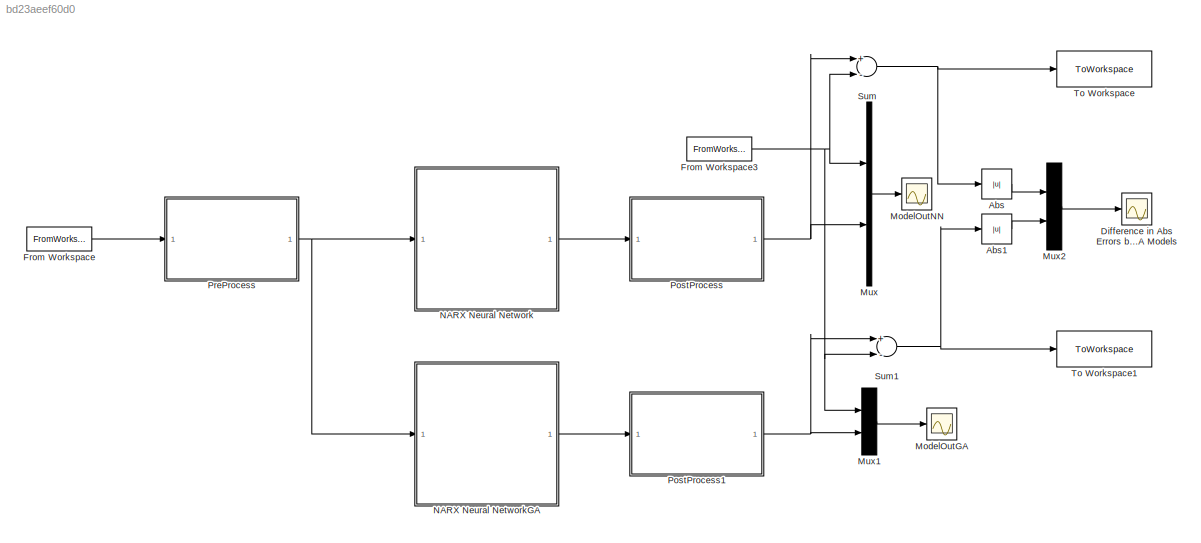
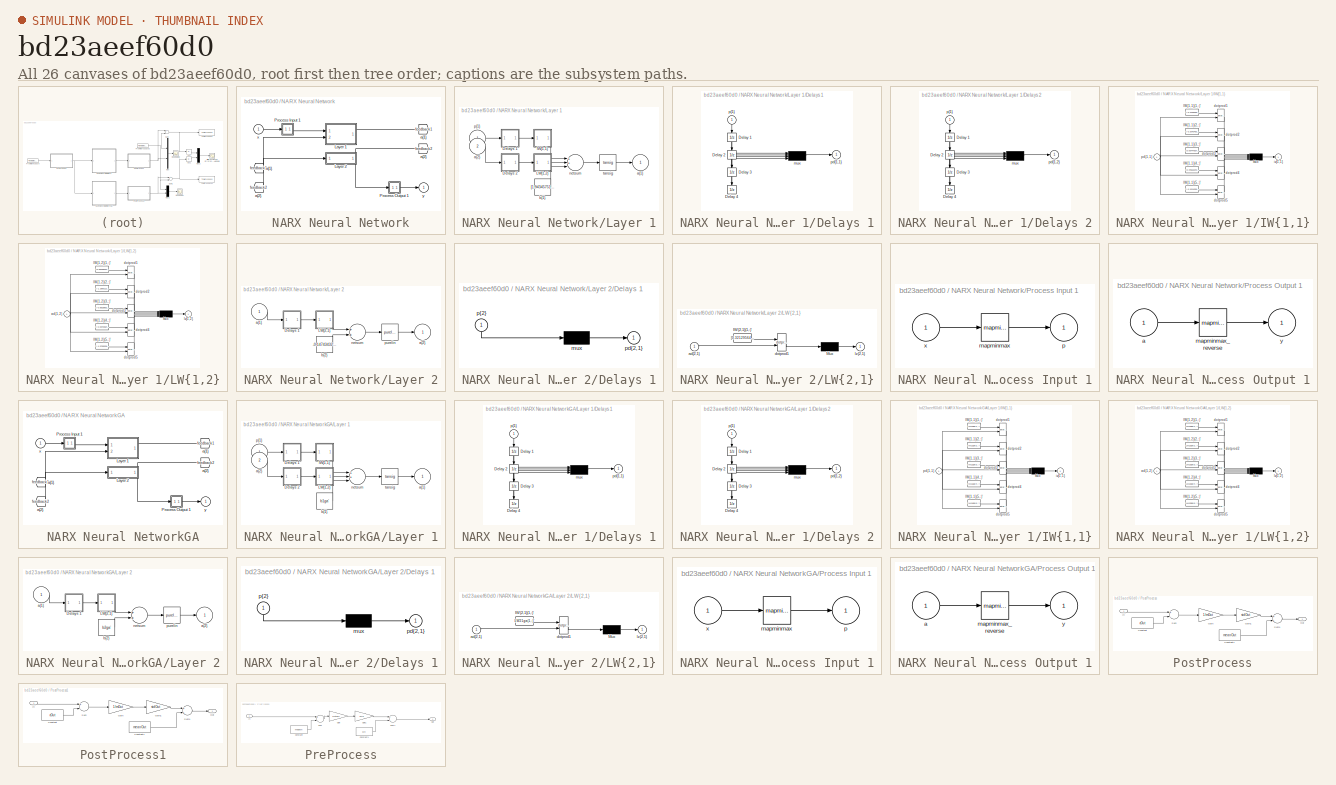
[diagram: thumbnail index - all 26 canvases of the model, root first then tree order]
MODEL slx_bd23aeef60d0
KIND model
CONFIG AbsTol = auto
CONFIG FixedStep = auto
CONFIG MaxStep = auto
CONFIG MinStep = auto
CONFIG RelTol = 1e-3
CONFIG SampleTimeConstraint = Unconstrained
CONFIG Solver = VariableStepAuto
CONFIG SolverMode = Auto
CONFIG SolverName = VariableStepAuto
CONFIG StartTime = 0.0
CONFIG StopTime = 19
BLOCK [Abs] Abs
  SaturateOnIntegerOverflow = off
BLOCK [Abs] Abs1
  SaturateOnIntegerOverflow = off
BLOCK [Scope] Difference in Abs Errors between NN and GA Models
  Ports = [1]
  ScopeSpecificationString = Simulink.scopes.TimeScopeBlockCfg('CurrentConfiguration', extmgr.ConfigurationSet(extmgr.Configuration('Core','General UI',true),extmgr.Configuration('Core','Source UI',true),extmgr.Configuration('Sources','WiredSimulink',true,'DataLoggingVariableName','ScopeData1'),extmgr.Configuration('Visuals','Time Domain',true,'SerializedDisplays',{struct('MinYLimReal','-12.60659','MaxYLimReal','6.87972','YLa...<+1464ch>
BLOCK [FromWorkspace] From Workspace
  VariableName = zIn
  ZeroCross = on
BLOCK [FromWorkspace] From Workspace3
  VariableName = zOut
  ZeroCross = on
BLOCK [Scope] ModelOutGA
  Ports = [1]
  ScopeSpecificationString = Simulink.scopes.TimeScopeBlockCfg('CurrentConfiguration', extmgr.ConfigurationSet(extmgr.Configuration('Core','General UI',true),extmgr.Configuration('Core','Source UI',true),extmgr.Configuration('Sources','WiredSimulink',true,'DataLoggingVariableName','ScopeData1'),extmgr.Configuration('Visuals','Time Domain',true,'SerializedDisplays',{struct('MinYLimReal','-2.37125','MaxYLimReal','41.64125','YLa...<+1445ch>
BLOCK [Scope] ModelOutNN
  Ports = [1]
  ScopeSpecificationString = Simulink.scopes.TimeScopeBlockCfg('CurrentConfiguration', extmgr.ConfigurationSet(extmgr.Configuration('Core','General UI',true),extmgr.Configuration('Core','Source UI',true),extmgr.Configuration('Sources','WiredSimulink',true),extmgr.Configuration('Visuals','Time Domain',true,'SerializedDisplays',{struct('MinYLimReal','-2.81939','MaxYLimReal','41.69104','YLabelReal','','MinYLimMag','0.00000','Max...<+1405ch>
BLOCK [Mux] Mux
  DisplayOption = bar
  Inputs = 2
  Ports = [2, 1]
BLOCK [Mux] Mux1
  DisplayOption = bar
  Inputs = 2
  Ports = [2, 1]
BLOCK [Mux] Mux2
  DisplayOption = bar
  Inputs = 2
  Ports = [2, 1]
BLOCK [SubSystem] NARX Neural Network
  Ports = [1, 1]
  RequestExecContextInheritance = off
  Variant = off
BLOCK [From] NARX Neural Network/ a{1} 
  GotoTag = feedback1
BLOCK [From] NARX Neural Network/ a{2} 
  GotoTag = feedback2
BLOCK [SubSystem] NARX Neural Network/Layer 1
  Ports = [2, 1]
  RequestExecContextInheritance = off
  Variant = off
BLOCK [SubSystem] NARX Neural Network/Layer 1/Delays 1
  Ports = [1, 1]
  RequestExecContextInheritance = off
  Variant = off
BLOCK [UnitDelay] NARX Neural Network/Layer 1/Delays 1/Delay 1
  InitialCondition = pi_input_1_delayed_1
  SampleTime = 0.001
BLOCK [UnitDelay] NARX Neural Network/Layer 1/Delays 1/Delay 2
  InitialCondition = pi_input_1_delayed_2
  SampleTime = 0.001
BLOCK [UnitDelay] NARX Neural Network/Layer 1/Delays 1/Delay 3
  InitialCondition = pi_input_1_delayed_3
  SampleTime = 0.001
BLOCK [UnitDelay] NARX Neural Network/Layer 1/Delays 1/Delay 4
  InitialCondition = pi_input_1_delayed_4
  SampleTime = 0.001
BLOCK [Mux] NARX Neural Network/Layer 1/Delays 1/mux
  Ports = [4, 1]
BLOCK [Outport] NARX Neural Network/Layer 1/Delays 1/pd{1,1}
  IconDisplay = Port number
BLOCK [Inport] NARX Neural Network/Layer 1/Delays 1/p{1}
  IconDisplay = Port number
  PortDimensions = 1
  SampleTime = 0.001
BLOCK [SubSystem] NARX Neural Network/Layer 1/Delays 2
  Ports = [1, 1]
  RequestExecContextInheritance = off
  Variant = off
BLOCK [UnitDelay] NARX Neural Network/Layer 1/Delays 2/Delay 1
  InitialCondition = ai_layer_2_delayed_1
  SampleTime = 0.001
BLOCK [UnitDelay] NARX Neural Network/Layer 1/Delays 2/Delay 2
  InitialCondition = ai_layer_2_delayed_2
  SampleTime = 0.001
BLOCK [UnitDelay] NARX Neural Network/Layer 1/Delays 2/Delay 3
  InitialCondition = ai_layer_2_delayed_3
  SampleTime = 0.001
BLOCK [UnitDelay] NARX Neural Network/Layer 1/Delays 2/Delay 4
  InitialCondition = ai_layer_2_delayed_4
  SampleTime = 0.001
BLOCK [Mux] NARX Neural Network/Layer 1/Delays 2/mux
  Ports = [4, 1]
BLOCK [Outport] NARX Neural Network/Layer 1/Delays 2/pd{1,2}
  IconDisplay = Port number
BLOCK [Inport] NARX Neural Network/Layer 1/Delays 2/p{1}
  IconDisplay = Port number
  PortDimensions = 1
  SampleTime = 0.001
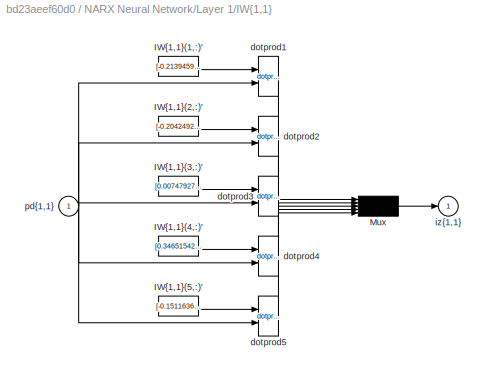
BLOCK [SubSystem] NARX Neural Network/Layer 1/IW{1,1}
  Ports = [1, 1]
  RequestExecContextInheritance = off
  Variant = off
BLOCK [Constant] NARX Neural Network/Layer 1/IW{1,1}/IW{1,1}(1,:)'
  Value = [-0.21394592193261483;0.27340388256736614;0.15605109366863168;-0.20573258549225115]
BLOCK [Constant] NARX Neural Network/Layer 1/IW{1,1}/IW{1,1}(2,:)'
  Value = [-0.20424927994111769;0.29307007345864194;0.57652523715217718;-0.66514344759104971]
BLOCK [Constant] NARX Neural Network/Layer 1/IW{1,1}/IW{1,1}(3,:)'
  Value = [0.0074792775410704665;-0.0123361567030246;0.045655823248145468;-0.038196486853773699]
BLOCK [Constant] NARX Neural Network/Layer 1/IW{1,1}/IW{1,1}(4,:)'
  Value = [0.34651542762470011;-0.29698234840308579;-0.55506471255227097;0.42689792275396249]
BLOCK [Constant] NARX Neural Network/Layer 1/IW{1,1}/IW{1,1}(5,:)'
  Value = [-0.1511636583266473;0.11704615743356805;-0.22102464488796872;0.24585817351529715]
BLOCK [Mux] NARX Neural Network/Layer 1/IW{1,1}/Mux
  Inputs = 5
  Ports = [5, 1]
BLOCK [Reference] NARX Neural Network/Layer 1/IW{1,1}/dotprod1  REF=neural/Weight Functions/dotprod
  Ports = [2, 1]
  SourceBlock = neural/Weight Functions/dotprod
  SourceType = DOTPROD
BLOCK [Reference] NARX Neural Network/Layer 1/IW{1,1}/dotprod2  REF=neural/Weight Functions/dotprod
  Ports = [2, 1]
  SourceBlock = neural/Weight Functions/dotprod
  SourceType = DOTPROD
BLOCK [Reference] NARX Neural Network/Layer 1/IW{1,1}/dotprod3  REF=neural/Weight Functions/dotprod
  Ports = [2, 1]
  SourceBlock = neural/Weight Functions/dotprod
  SourceType = DOTPROD
BLOCK [Reference] NARX Neural Network/Layer 1/IW{1,1}/dotprod4  REF=neural/Weight Functions/dotprod
  Ports = [2, 1]
  SourceBlock = neural/Weight Functions/dotprod
  SourceType = DOTPROD
BLOCK [Reference] NARX Neural Network/Layer 1/IW{1,1}/dotprod5  REF=neural/Weight Functions/dotprod
  Ports = [2, 1]
  SourceBlock = neural/Weight Functions/dotprod
  SourceType = DOTPROD
BLOCK [Outport] NARX Neural Network/Layer 1/IW{1,1}/iz{1,1}
  IconDisplay = Port number
BLOCK [Inport] NARX Neural Network/Layer 1/IW{1,1}/pd{1,1}
  IconDisplay = Port number
  PortDimensions = 4
  SampleTime = 0.001
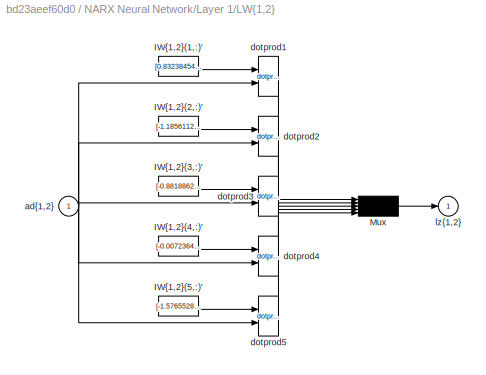
BLOCK [SubSystem] NARX Neural Network/Layer 1/LW{1,2}
  Ports = [1, 1]
  RequestExecContextInheritance = off
  Variant = off
BLOCK [Constant] NARX Neural Network/Layer 1/LW{1,2}/IW{1,2}(1,:)'
  Value = [0.83238454681226848;-0.037448841420938413;0.047032227985971439;0.48141574394877518]
BLOCK [Constant] NARX Neural Network/Layer 1/LW{1,2}/IW{1,2}(2,:)'
  Value = [-1.1856112524529332;-0.27002026011054792;-0.33121581336721939;-0.83434423372397626]
BLOCK [Constant] NARX Neural Network/Layer 1/LW{1,2}/IW{1,2}(3,:)'
  Value = [-0.88188624971345997;-0.055936392822702428;-0.026637181143175519;0.24441715125290531]
BLOCK [Constant] NARX Neural Network/Layer 1/LW{1,2}/IW{1,2}(4,:)'
  Value = [-0.0072364442992937737;-0.19605239676741004;-1.1747343128807008;-0.99669915592995517]
BLOCK [Constant] NARX Neural Network/Layer 1/LW{1,2}/IW{1,2}(5,:)'
  Value = [-1.5765528979621626;-0.19789138785028351;-0.17566180863724826;0.56285898423633152]
BLOCK [Mux] NARX Neural Network/Layer 1/LW{1,2}/Mux
  Inputs = 5
  Ports = [5, 1]
BLOCK [Inport] NARX Neural Network/Layer 1/LW{1,2}/ad{1,2}
  IconDisplay = Port number
  PortDimensions = 4
  SampleTime = 0.001
BLOCK [Reference] NARX Neural Network/Layer 1/LW{1,2}/dotprod1  REF=neural/Weight Functions/dotprod
  Ports = [2, 1]
  SourceBlock = neural/Weight Functions/dotprod
  SourceType = DOTPROD
BLOCK [Reference] NARX Neural Network/Layer 1/LW{1,2}/dotprod2  REF=neural/Weight Functions/dotprod
  Ports = [2, 1]
  SourceBlock = neural/Weight Functions/dotprod
  SourceType = DOTPROD
BLOCK [Reference] NARX Neural Network/Layer 1/LW{1,2}/dotprod3  REF=neural/Weight Functions/dotprod
  Ports = [2, 1]
  SourceBlock = neural/Weight Functions/dotprod
  SourceType = DOTPROD
BLOCK [Reference] NARX Neural Network/Layer 1/LW{1,2}/dotprod4  REF=neural/Weight Functions/dotprod
  Ports = [2, 1]
  SourceBlock = neural/Weight Functions/dotprod
  SourceType = DOTPROD
BLOCK [Reference] NARX Neural Network/Layer 1/LW{1,2}/dotprod5  REF=neural/Weight Functions/dotprod
  Ports = [2, 1]
  SourceBlock = neural/Weight Functions/dotprod
  SourceType = DOTPROD
BLOCK [Outport] NARX Neural Network/Layer 1/LW{1,2}/lz{1,2}
  IconDisplay = Port number
BLOCK [Outport] NARX Neural Network/Layer 1/a{1}
  IconDisplay = Port number
  InitialOutput = [0;0;0;0;0]
BLOCK [Inport] NARX Neural Network/Layer 1/a{2} 
  IconDisplay = Port number
  Port = 2
  PortDimensions = 1
  SampleTime = 0.001
BLOCK [Constant] NARX Neural Network/Layer 1/b{1}
  Value = [1.943457516117048;1.4384556067515928;-0.26241997125974481;0.35965151055632366;1.6671540210116291]
BLOCK [Sum] NARX Neural Network/Layer 1/netsum
  Inputs = 3
  Ports = [3, 1]
BLOCK [Inport] NARX Neural Network/Layer 1/p{1}
  IconDisplay = Port number
  PortDimensions = 1
  SampleTime = 0.001
BLOCK [Reference] NARX Neural Network/Layer 1/tansig  REF=neural/Transfer Functions/tansig
  Ports = [1, 1]
  SourceBlock = neural/Transfer Functions/tansig
  SourceType = TANSIG
BLOCK [SubSystem] NARX Neural Network/Layer 2
  Ports = [1, 1]
  RequestExecContextInheritance = off
  Variant = off
BLOCK [SubSystem] NARX Neural Network/Layer 2/Delays 1
  Ports = [1, 1]
  RequestExecContextInheritance = off
  Variant = off
BLOCK [Mux] NARX Neural Network/Layer 2/Delays 1/mux
  Inputs = 1
  Ports = [1, 1]
BLOCK [Outport] NARX Neural Network/Layer 2/Delays 1/pd{2,1}
  IconDisplay = Port number
BLOCK [Inport] NARX Neural Network/Layer 2/Delays 1/p{2}
  IconDisplay = Port number
  PortDimensions = 5
  SampleTime = 0.001
BLOCK [SubSystem] NARX Neural Network/Layer 2/LW{2,1}
  Ports = [1, 1]
  RequestExecContextInheritance = off
  Variant = off
BLOCK [Constant] NARX Neural Network/Layer 2/LW{2,1}/IW{2,1}(1,:)'
  Value = [0.32129564989516812;-0.027689574041571997;-1.1897399838020446;-0.03308149829136469;-0.46157462385903975]
BLOCK [Mux] NARX Neural Network/Layer 2/LW{2,1}/Mux
  Inputs = 1
  Ports = [1, 1]
BLOCK [Inport] NARX Neural Network/Layer 2/LW{2,1}/ad{2,1}
  IconDisplay = Port number
  PortDimensions = 5
  SampleTime = 0.001
BLOCK [Reference] NARX Neural Network/Layer 2/LW{2,1}/dotprod1  REF=neural/Weight Functions/dotprod
  Ports = [2, 1]
  SourceBlock = neural/Weight Functions/dotprod
  SourceType = DOTPROD
BLOCK [Outport] NARX Neural Network/Layer 2/LW{2,1}/lz{2,1}
  IconDisplay = Port number
BLOCK [Inport] NARX Neural Network/Layer 2/a{1} 
  IconDisplay = Port number
  PortDimensions = 5
  SampleTime = 0.001
BLOCK [Outport] NARX Neural Network/Layer 2/a{2}
  IconDisplay = Port number
  InitialOutput = 0
BLOCK [Constant] NARX Neural Network/Layer 2/b{2}
  Value = -0.14743432023291708
BLOCK [Sum] NARX Neural Network/Layer 2/netsum
  Inputs = 2
  Ports = [2, 1]
BLOCK [Reference] NARX Neural Network/Layer 2/purelin  REF=neural/Transfer Functions/purelin
  Ports = [1, 1]
  SourceBlock = neural/Transfer Functions/purelin
  SourceType = PURELIN
BLOCK [SubSystem] NARX Neural Network/Process Input 1
  Ports = [1, 1]
  RequestExecContextInheritance = off
  Variant = off
BLOCK [Reference] NARX Neural Network/Process Input 1/mapminmax  REF=neural/Processing Functions/mapminmax
  Ports = [1, 1]
  SourceBlock = neural/Processing Functions/mapminmax
  SourceType = MAPMINMAX Preprocess
BLOCK [Outport] NARX Neural Network/Process Input 1/p
  IconDisplay = Port number
  PortDimensions = 1
  SampleTime = 0.001
BLOCK [Inport] NARX Neural Network/Process Input 1/x
  IconDisplay = Port number
  PortDimensions = 1
  SampleTime = 0.001
BLOCK [SubSystem] NARX Neural Network/Process Output 1
  Ports = [1, 1]
  RequestExecContextInheritance = off
  Variant = off
BLOCK [Inport] NARX Neural Network/Process Output 1/a
  IconDisplay = Port number
  PortDimensions = 1
  SampleTime = 0.001
BLOCK [Reference] NARX Neural Network/Process Output 1/mapminmax_reverse  REF=neural/Processing Functions/mapminmax_reverse
  Ports = [1, 1]
  SourceBlock = neural/Processing Functions/mapminmax_reverse
  SourceType = MAPMINMAX Reverse Process
BLOCK [Outport] NARX Neural Network/Process Output 1/y
  IconDisplay = Port number
  PortDimensions = 1
  SampleTime = 0.001
BLOCK [Goto] NARX Neural Network/a{1}
  GotoTag = feedback1
BLOCK [Goto] NARX Neural Network/a{2}
  GotoTag = feedback2
BLOCK [Inport] NARX Neural Network/x
  IconDisplay = Port number
  PortDimensions = 1
  SampleTime = 0.001
BLOCK [Outport] NARX Neural Network/y
  IconDisplay = Port number
  InitialOutput = 0
BLOCK [SubSystem] NARX Neural NetworkGA
  Ports = [1, 1]
  RequestExecContextInheritance = off
  Variant = off
BLOCK [From] NARX Neural NetworkGA/ a{1} 
  GotoTag = feedback1
BLOCK [From] NARX Neural NetworkGA/ a{2} 
  GotoTag = feedback2
BLOCK [SubSystem] NARX Neural NetworkGA/Layer 1
  Ports = [2, 1]
  RequestExecContextInheritance = off
  Variant = off
BLOCK [SubSystem] NARX Neural NetworkGA/Layer 1/Delays 1
  Ports = [1, 1]
  RequestExecContextInheritance = off
  Variant = off
BLOCK [UnitDelay] NARX Neural NetworkGA/Layer 1/Delays 1/Delay 1
  InitialCondition = pi_input_1_delayed_1
  SampleTime = 0.001
BLOCK [UnitDelay] NARX Neural NetworkGA/Layer 1/Delays 1/Delay 2
  InitialCondition = pi_input_1_delayed_2
  SampleTime = 0.001
BLOCK [UnitDelay] NARX Neural NetworkGA/Layer 1/Delays 1/Delay 3
  InitialCondition = pi_input_1_delayed_3
  SampleTime = 0.001
BLOCK [UnitDelay] NARX Neural NetworkGA/Layer 1/Delays 1/Delay 4
  InitialCondition = pi_input_1_delayed_4
  SampleTime = 0.001
BLOCK [Mux] NARX Neural NetworkGA/Layer 1/Delays 1/mux
  Ports = [4, 1]
BLOCK [Outport] NARX Neural NetworkGA/Layer 1/Delays 1/pd{1,1}
  IconDisplay = Port number
BLOCK [Inport] NARX Neural NetworkGA/Layer 1/Delays 1/p{1}
  IconDisplay = Port number
  PortDimensions = 1
  SampleTime = 0.001
BLOCK [SubSystem] NARX Neural NetworkGA/Layer 1/Delays 2
  Ports = [1, 1]
  RequestExecContextInheritance = off
  Variant = off
BLOCK [UnitDelay] NARX Neural NetworkGA/Layer 1/Delays 2/Delay 1
  InitialCondition = ai_layer_2_delayed_1
  SampleTime = 0.001
BLOCK [UnitDelay] NARX Neural NetworkGA/Layer 1/Delays 2/Delay 2
  InitialCondition = ai_layer_2_delayed_2
  SampleTime = 0.001
BLOCK [UnitDelay] NARX Neural NetworkGA/Layer 1/Delays 2/Delay 3
  InitialCondition = ai_layer_2_delayed_3
  SampleTime = 0.001
BLOCK [UnitDelay] NARX Neural NetworkGA/Layer 1/Delays 2/Delay 4
  InitialCondition = ai_layer_2_delayed_4
  SampleTime = 0.001
BLOCK [Mux] NARX Neural NetworkGA/Layer 1/Delays 2/mux
  Ports = [4, 1]
BLOCK [Outport] NARX Neural NetworkGA/Layer 1/Delays 2/pd{1,2}
  IconDisplay = Port number
BLOCK [Inport] NARX Neural NetworkGA/Layer 1/Delays 2/p{1}
  IconDisplay = Port number
  PortDimensions = 1
  SampleTime = 0.001
BLOCK [SubSystem] NARX Neural NetworkGA/Layer 1/IW{1,1}
  Ports = [1, 1]
  RequestExecContextInheritance = off
  Variant = off
BLOCK [Constant] NARX Neural NetworkGA/Layer 1/IW{1,1}/IW{1,1}(1,:)'
  Value = IW11ga(1,:)'
BLOCK [Constant] NARX Neural NetworkGA/Layer 1/IW{1,1}/IW{1,1}(2,:)'
  Value = IW11ga(2,:)'
BLOCK [Constant] NARX Neural NetworkGA/Layer 1/IW{1,1}/IW{1,1}(3,:)'
  Value = IW11ga(3,:)'
BLOCK [Constant] NARX Neural NetworkGA/Layer 1/IW{1,1}/IW{1,1}(4,:)'
  Value = IW11ga(4,:)'
BLOCK [Constant] NARX Neural NetworkGA/Layer 1/IW{1,1}/IW{1,1}(5,:)'
  Value = IW11ga(5,:)'
BLOCK [Mux] NARX Neural NetworkGA/Layer 1/IW{1,1}/Mux
  Inputs = 5
  Ports = [5, 1]
BLOCK [Reference] NARX Neural NetworkGA/Layer 1/IW{1,1}/dotprod1  REF=neural/Weight Functions/dotprod
  Ports = [2, 1]
  SourceBlock = neural/Weight Functions/dotprod
  SourceType = DOTPROD
BLOCK [Reference] NARX Neural NetworkGA/Layer 1/IW{1,1}/dotprod2  REF=neural/Weight Functions/dotprod
  Ports = [2, 1]
  SourceBlock = neural/Weight Functions/dotprod
  SourceType = DOTPROD
BLOCK [Reference] NARX Neural NetworkGA/Layer 1/IW{1,1}/dotprod3  REF=neural/Weight Functions/dotprod
  Ports = [2, 1]
  SourceBlock = neural/Weight Functions/dotprod
  SourceType = DOTPROD
BLOCK [Reference] NARX Neural NetworkGA/Layer 1/IW{1,1}/dotprod4  REF=neural/Weight Functions/dotprod
  Ports = [2, 1]
  SourceBlock = neural/Weight Functions/dotprod
  SourceType = DOTPROD
BLOCK [Reference] NARX Neural NetworkGA/Layer 1/IW{1,1}/dotprod5  REF=neural/Weight Functions/dotprod
  Ports = [2, 1]
  SourceBlock = neural/Weight Functions/dotprod
  SourceType = DOTPROD
BLOCK [Outport] NARX Neural NetworkGA/Layer 1/IW{1,1}/iz{1,1}
  IconDisplay = Port number
BLOCK [Inport] NARX Neural NetworkGA/Layer 1/IW{1,1}/pd{1,1}
  IconDisplay = Port number
  PortDimensions = 4
  SampleTime = 0.001
BLOCK [SubSystem] NARX Neural NetworkGA/Layer 1/LW{1,2}
  Ports = [1, 1]
  RequestExecContextInheritance = off
  Variant = off
BLOCK [Constant] NARX Neural NetworkGA/Layer 1/LW{1,2}/IW{1,2}(1,:)'
  Value = LW12ga(1,:)'
BLOCK [Constant] NARX Neural NetworkGA/Layer 1/LW{1,2}/IW{1,2}(2,:)'
  Value = LW12ga(2,:)'
BLOCK [Constant] NARX Neural NetworkGA/Layer 1/LW{1,2}/IW{1,2}(3,:)'
  Value = LW12ga(3,:)'
BLOCK [Constant] NARX Neural NetworkGA/Layer 1/LW{1,2}/IW{1,2}(4,:)'
  Value = LW12ga(4,:)'
BLOCK [Constant] NARX Neural NetworkGA/Layer 1/LW{1,2}/IW{1,2}(5,:)'
  Value = LW12ga(5,:)'
BLOCK [Mux] NARX Neural NetworkGA/Layer 1/LW{1,2}/Mux
  Inputs = 5
  Ports = [5, 1]
BLOCK [Inport] NARX Neural NetworkGA/Layer 1/LW{1,2}/ad{1,2}
  IconDisplay = Port number
  PortDimensions = 4
  SampleTime = 0.001
BLOCK [Reference] NARX Neural NetworkGA/Layer 1/LW{1,2}/dotprod1  REF=neural/Weight Functions/dotprod
  Ports = [2, 1]
  SourceBlock = neural/Weight Functions/dotprod
  SourceType = DOTPROD
BLOCK [Reference] NARX Neural NetworkGA/Layer 1/LW{1,2}/dotprod2  REF=neural/Weight Functions/dotprod
  Ports = [2, 1]
  SourceBlock = neural/Weight Functions/dotprod
  SourceType = DOTPROD
BLOCK [Reference] NARX Neural NetworkGA/Layer 1/LW{1,2}/dotprod3  REF=neural/Weight Functions/dotprod
  Ports = [2, 1]
  SourceBlock = neural/Weight Functions/dotprod
  SourceType = DOTPROD
BLOCK [Reference] NARX Neural NetworkGA/Layer 1/LW{1,2}/dotprod4  REF=neural/Weight Functions/dotprod
  Ports = [2, 1]
  SourceBlock = neural/Weight Functions/dotprod
  SourceType = DOTPROD
BLOCK [Reference] NARX Neural NetworkGA/Layer 1/LW{1,2}/dotprod5  REF=neural/Weight Functions/dotprod
  Ports = [2, 1]
  SourceBlock = neural/Weight Functions/dotprod
  SourceType = DOTPROD
BLOCK [Outport] NARX Neural NetworkGA/Layer 1/LW{1,2}/lz{1,2}
  IconDisplay = Port number
BLOCK [Outport] NARX Neural NetworkGA/Layer 1/a{1}
  IconDisplay = Port number
  InitialOutput = [0;0;0;0;0]
BLOCK [Inport] NARX Neural NetworkGA/Layer 1/a{2} 
  IconDisplay = Port number
  Port = 2
  PortDimensions = 1
  SampleTime = 0.001
BLOCK [Constant] NARX Neural NetworkGA/Layer 1/b{1}
  Value = b1ga'
BLOCK [Sum] NARX Neural NetworkGA/Layer 1/netsum
  Inputs = 3
  Ports = [3, 1]
BLOCK [Inport] NARX Neural NetworkGA/Layer 1/p{1}
  IconDisplay = Port number
  PortDimensions = 1
  SampleTime = 0.001
BLOCK [Reference] NARX Neural NetworkGA/Layer 1/tansig  REF=neural/Transfer Functions/tansig
  Ports = [1, 1]
  SourceBlock = neural/Transfer Functions/tansig
  SourceType = TANSIG
BLOCK [SubSystem] NARX Neural NetworkGA/Layer 2
  Ports = [1, 1]
  RequestExecContextInheritance = off
  Variant = off
BLOCK [SubSystem] NARX Neural NetworkGA/Layer 2/Delays 1
  Ports = [1, 1]
  RequestExecContextInheritance = off
  Variant = off
BLOCK [Mux] NARX Neural NetworkGA/Layer 2/Delays 1/mux
  Inputs = 1
  Ports = [1, 1]
BLOCK [Outport] NARX Neural NetworkGA/Layer 2/Delays 1/pd{2,1}
  IconDisplay = Port number
BLOCK [Inport] NARX Neural NetworkGA/Layer 2/Delays 1/p{2}
  IconDisplay = Port number
  PortDimensions = 5
  SampleTime = 0.001
BLOCK [SubSystem] NARX Neural NetworkGA/Layer 2/LW{2,1}
  Ports = [1, 1]
  RequestExecContextInheritance = off
  Variant = off
BLOCK [Constant] NARX Neural NetworkGA/Layer 2/LW{2,1}/IW{2,1}(1,:)'
  Value = LW21ga(1,:)'
BLOCK [Mux] NARX Neural NetworkGA/Layer 2/LW{2,1}/Mux
  Inputs = 1
  Ports = [1, 1]
BLOCK [Inport] NARX Neural NetworkGA/Layer 2/LW{2,1}/ad{2,1}
  IconDisplay = Port number
  PortDimensions = 5
  SampleTime = 0.001
BLOCK [Reference] NARX Neural NetworkGA/Layer 2/LW{2,1}/dotprod1  REF=neural/Weight Functions/dotprod
  Ports = [2, 1]
  SourceBlock = neural/Weight Functions/dotprod
  SourceType = DOTPROD
BLOCK [Outport] NARX Neural NetworkGA/Layer 2/LW{2,1}/lz{2,1}
  IconDisplay = Port number
BLOCK [Inport] NARX Neural NetworkGA/Layer 2/a{1} 
  IconDisplay = Port number
  PortDimensions = 5
  SampleTime = 0.001
BLOCK [Outport] NARX Neural NetworkGA/Layer 2/a{2}
  IconDisplay = Port number
  InitialOutput = 0
BLOCK [Constant] NARX Neural NetworkGA/Layer 2/b{2}
  Value = b2ga'
BLOCK [Sum] NARX Neural NetworkGA/Layer 2/netsum
  Inputs = 2
  Ports = [2, 1]
BLOCK [Reference] NARX Neural NetworkGA/Layer 2/purelin  REF=neural/Transfer Functions/purelin
  Ports = [1, 1]
  SourceBlock = neural/Transfer Functions/purelin
  SourceType = PURELIN
BLOCK [SubSystem] NARX Neural NetworkGA/Process Input 1
  Ports = [1, 1]
  RequestExecContextInheritance = off
  Variant = off
BLOCK [Reference] NARX Neural NetworkGA/Process Input 1/mapminmax  REF=neural/Processing Functions/mapminmax
  Ports = [1, 1]
  SourceBlock = neural/Processing Functions/mapminmax
  SourceType = MAPMINMAX Preprocess
BLOCK [Outport] NARX Neural NetworkGA/Process Input 1/p
  IconDisplay = Port number
  PortDimensions = 1
  SampleTime = 0.001
BLOCK [Inport] NARX Neural NetworkGA/Process Input 1/x
  IconDisplay = Port number
  PortDimensions = 1
  SampleTime = 0.001
BLOCK [SubSystem] NARX Neural NetworkGA/Process Output 1
  Ports = [1, 1]
  RequestExecContextInheritance = off
  Variant = off
BLOCK [Inport] NARX Neural NetworkGA/Process Output 1/a
  IconDisplay = Port number
  PortDimensions = 1
  SampleTime = 0.001
BLOCK [Reference] NARX Neural NetworkGA/Process Output 1/mapminmax_reverse  REF=neural/Processing Functions/mapminmax_reverse
  Ports = [1, 1]
  SourceBlock = neural/Processing Functions/mapminmax_reverse
  SourceType = MAPMINMAX Reverse Process
BLOCK [Outport] NARX Neural NetworkGA/Process Output 1/y
  IconDisplay = Port number
  PortDimensions = 1
  SampleTime = 0.001
BLOCK [Goto] NARX Neural NetworkGA/a{1}
  GotoTag = feedback1
BLOCK [Goto] NARX Neural NetworkGA/a{2}
  GotoTag = feedback2
BLOCK [Inport] NARX Neural NetworkGA/x
  IconDisplay = Port number
  PortDimensions = 1
  SampleTime = 0.001
BLOCK [Outport] NARX Neural NetworkGA/y
  IconDisplay = Port number
  InitialOutput = 0
BLOCK [SubSystem] PostProcess
  Ports = [1, 1]
  RequestExecContextInheritance = off
  Variant = off
BLOCK [Constant] PostProcess/Constant
  Value = cOut
BLOCK [Constant] PostProcess/Constant1
  Value = meanOut
BLOCK [Gain] PostProcess/Gain
  Gain = 1/mOut
  OutDataTypeStr = Inherit: Inherit via internal rule
  ParamDataTypeStr = Inherit: Inherit via internal rule
  SaturateOnIntegerOverflow = off
BLOCK [Gain] PostProcess/Gain1
  Gain = stdOut
  OutDataTypeStr = Inherit: Inherit via internal rule
  ParamDataTypeStr = Inherit: Inherit via internal rule
  SaturateOnIntegerOverflow = off
BLOCK [Inport] PostProcess/In
  IconDisplay = Port number
BLOCK [Outport] PostProcess/Out
  IconDisplay = Port number
BLOCK [Sum] PostProcess/Sum
  InputSameDT = off
  Inputs = +-
  OutDataTypeStr = Inherit: Inherit via internal rule
  Ports = [2, 1]
  SaturateOnIntegerOverflow = off
BLOCK [Sum] PostProcess/Sum1
  InputSameDT = off
  OutDataTypeStr = Inherit: Inherit via internal rule
  Ports = [2, 1]
  SaturateOnIntegerOverflow = off
BLOCK [SubSystem] PostProcess1
  Ports = [1, 1]
  RequestExecContextInheritance = off
  Variant = off
BLOCK [Constant] PostProcess1/Constant
  Value = cOut
BLOCK [Constant] PostProcess1/Constant1
  Value = meanOut
BLOCK [Gain] PostProcess1/Gain
  Gain = 1/mOut
  OutDataTypeStr = Inherit: Inherit via internal rule
  ParamDataTypeStr = Inherit: Inherit via internal rule
  SaturateOnIntegerOverflow = off
BLOCK [Gain] PostProcess1/Gain1
  Gain = stdOut
  OutDataTypeStr = Inherit: Inherit via internal rule
  ParamDataTypeStr = Inherit: Inherit via internal rule
  SaturateOnIntegerOverflow = off
BLOCK [Inport] PostProcess1/In
  IconDisplay = Port number
BLOCK [Outport] PostProcess1/Out
  IconDisplay = Port number
BLOCK [Sum] PostProcess1/Sum
  InputSameDT = off
  Inputs = +-
  OutDataTypeStr = Inherit: Inherit via internal rule
  Ports = [2, 1]
  SaturateOnIntegerOverflow = off
BLOCK [Sum] PostProcess1/Sum1
  InputSameDT = off
  OutDataTypeStr = Inherit: Inherit via internal rule
  Ports = [2, 1]
  SaturateOnIntegerOverflow = off
BLOCK [SubSystem] PreProcess
  Ports = [1, 1]
  RequestExecContextInheritance = off
  Variant = off
BLOCK [Constant] PreProcess/Constant
  Value = meanIn
BLOCK [Constant] PreProcess/Constant1
  Value = cIn
BLOCK [Gain] PreProcess/Gain
  Gain = 1/stdIn
  OutDataTypeStr = Inherit: Inherit via internal rule
  ParamDataTypeStr = Inherit: Inherit via internal rule
  SaturateOnIntegerOverflow = off
BLOCK [Gain] PreProcess/Gain1
  Gain = mIn
  OutDataTypeStr = Inherit: Inherit via internal rule
  ParamDataTypeStr = Inherit: Inherit via internal rule
  SaturateOnIntegerOverflow = off
BLOCK [Inport] PreProcess/In
  IconDisplay = Port number
BLOCK [Outport] PreProcess/Out
  IconDisplay = Port number
BLOCK [Sum] PreProcess/Sum
  InputSameDT = off
  Inputs = +-
  OutDataTypeStr = Inherit: Inherit via internal rule
  Ports = [2, 1]
  SaturateOnIntegerOverflow = off
BLOCK [Sum] PreProcess/Sum1
  InputSameDT = off
  OutDataTypeStr = Inherit: Inherit via internal rule
  Ports = [2, 1]
  SaturateOnIntegerOverflow = off
BLOCK [Sum] Sum
  InputSameDT = off
  Inputs = +-
  OutDataTypeStr = Inherit: Inherit via internal rule
  Ports = [2, 1]
  SaturateOnIntegerOverflow = off
BLOCK [Sum] Sum1
  InputSameDT = off
  Inputs = +-
  OutDataTypeStr = Inherit: Inherit via internal rule
  Ports = [2, 1]
  SaturateOnIntegerOverflow = off
BLOCK [ToWorkspace] To Workspace
  FixptAsFi = on
  MaxDataPoints = inf
  Ports = [1]
  SampleTime = -1
  Save2DSignal = 3-D array (concatenate along third dimension)
  VariableName = errorNN
BLOCK [ToWorkspace] To Workspace1
  FixptAsFi = on
  MaxDataPoints = inf
  Ports = [1]
  SampleTime = -1
  Save2DSignal = 3-D array (concatenate along third dimension)
  VariableName = errorNNga
LINE Abs1:1 -> Mux2:2
LINE Abs:1 -> Mux2:1
NET From Workspace3:1 -> Mux1:1, Mux:1, Sum1:2, Sum:2
LINE From Workspace:1 -> PreProcess:1
LINE Mux1:1 -> ModelOutGA:1
LINE Mux2:1 -> Difference in Abs Errors between NN and GA Models:1
LINE Mux:1 -> ModelOutNN:1
LINE NARX Neural Network/ a{1} :1 -> NARX Neural Network/Layer 2:1
LINE NARX Neural Network/ a{2} :1 -> NARX Neural Network/Layer 1:2
NET NARX Neural Network/Layer 1/Delays 1/Delay 1:1 -> NARX Neural Network/Layer 1/Delays 1/Delay 2:1, NARX Neural Network/Layer 1/Delays 1/mux:1
NET NARX Neural Network/Layer 1/Delays 1/Delay 2:1 -> NARX Neural Network/Layer 1/Delays 1/Delay 3:1, NARX Neural Network/Layer 1/Delays 1/mux:2
NET NARX Neural Network/Layer 1/Delays 1/Delay 3:1 -> NARX Neural Network/Layer 1/Delays 1/Delay 4:1, NARX Neural Network/Layer 1/Delays 1/mux:3
LINE NARX Neural Network/Layer 1/Delays 1/Delay 4:1 -> NARX Neural Network/Layer 1/Delays 1/mux:4
LINE NARX Neural Network/Layer 1/Delays 1/mux:1 -> NARX Neural Network/Layer 1/Delays 1/pd{1,1}:1
LINE NARX Neural Network/Layer 1/Delays 1/p{1}:1 -> NARX Neural Network/Layer 1/Delays 1/Delay 1:1
LINE NARX Neural Network/Layer 1/Delays 1:1 -> NARX Neural Network/Layer 1/IW{1,1}:1
NET NARX Neural Network/Layer 1/Delays 2/Delay 1:1 -> NARX Neural Network/Layer 1/Delays 2/Delay 2:1, NARX Neural Network/Layer 1/Delays 2/mux:1
NET NARX Neural Network/Layer 1/Delays 2/Delay 2:1 -> NARX Neural Network/Layer 1/Delays 2/Delay 3:1, NARX Neural Network/Layer 1/Delays 2/mux:2
NET NARX Neural Network/Layer 1/Delays 2/Delay 3:1 -> NARX Neural Network/Layer 1/Delays 2/Delay 4:1, NARX Neural Network/Layer 1/Delays 2/mux:3
LINE NARX Neural Network/Layer 1/Delays 2/Delay 4:1 -> NARX Neural Network/Layer 1/Delays 2/mux:4
LINE NARX Neural Network/Layer 1/Delays 2/mux:1 -> NARX Neural Network/Layer 1/Delays 2/pd{1,2}:1
LINE NARX Neural Network/Layer 1/Delays 2/p{1}:1 -> NARX Neural Network/Layer 1/Delays 2/Delay 1:1
LINE NARX Neural Network/Layer 1/Delays 2:1 -> NARX Neural Network/Layer 1/LW{1,2}:1
LINE NARX Neural Network/Layer 1/IW{1,1}/IW{1,1}(1,:)':1 -> NARX Neural Network/Layer 1/IW{1,1}/dotprod1:1
LINE NARX Neural Network/Layer 1/IW{1,1}/IW{1,1}(2,:)':1 -> NARX Neural Network/Layer 1/IW{1,1}/dotprod2:1
LINE NARX Neural Network/Layer 1/IW{1,1}/IW{1,1}(3,:)':1 -> NARX Neural Network/Layer 1/IW{1,1}/dotprod3:1
LINE NARX Neural Network/Layer 1/IW{1,1}/IW{1,1}(4,:)':1 -> NARX Neural Network/Layer 1/IW{1,1}/dotprod4:1
LINE NARX Neural Network/Layer 1/IW{1,1}/IW{1,1}(5,:)':1 -> NARX Neural Network/Layer 1/IW{1,1}/dotprod5:1
LINE NARX Neural Network/Layer 1/IW{1,1}/Mux:1 -> NARX Neural Network/Layer 1/IW{1,1}/iz{1,1}:1
LINE NARX Neural Network/Layer 1/IW{1,1}/dotprod1:1 -> NARX Neural Network/Layer 1/IW{1,1}/Mux:1
LINE NARX Neural Network/Layer 1/IW{1,1}/dotprod2:1 -> NARX Neural Network/Layer 1/IW{1,1}/Mux:2
LINE NARX Neural Network/Layer 1/IW{1,1}/dotprod3:1 -> NARX Neural Network/Layer 1/IW{1,1}/Mux:3
LINE NARX Neural Network/Layer 1/IW{1,1}/dotprod4:1 -> NARX Neural Network/Layer 1/IW{1,1}/Mux:4
LINE NARX Neural Network/Layer 1/IW{1,1}/dotprod5:1 -> NARX Neural Network/Layer 1/IW{1,1}/Mux:5
NET NARX Neural Network/Layer 1/IW{1,1}/pd{1,1}:1 -> NARX Neural Network/Layer 1/IW{1,1}/dotprod1:2, NARX Neural Network/Layer 1/IW{1,1}/dotprod2:2, NARX Neural Network/Layer 1/IW{1,1}/dotprod3:2, NARX Neural Network/Layer 1/IW{1,1}/dotprod4:2, NARX Neural Network/Layer 1/IW{1,1}/dotprod5:2
LINE NARX Neural Network/Layer 1/IW{1,1}:1 -> NARX Neural Network/Layer 1/netsum:1
LINE NARX Neural Network/Layer 1/LW{1,2}/IW{1,2}(1,:)':1 -> NARX Neural Network/Layer 1/LW{1,2}/dotprod1:1
LINE NARX Neural Network/Layer 1/LW{1,2}/IW{1,2}(2,:)':1 -> NARX Neural Network/Layer 1/LW{1,2}/dotprod2:1
LINE NARX Neural Network/Layer 1/LW{1,2}/IW{1,2}(3,:)':1 -> NARX Neural Network/Layer 1/LW{1,2}/dotprod3:1
LINE NARX Neural Network/Layer 1/LW{1,2}/IW{1,2}(4,:)':1 -> NARX Neural Network/Layer 1/LW{1,2}/dotprod4:1
LINE NARX Neural Network/Layer 1/LW{1,2}/IW{1,2}(5,:)':1 -> NARX Neural Network/Layer 1/LW{1,2}/dotprod5:1
LINE NARX Neural Network/Layer 1/LW{1,2}/Mux:1 -> NARX Neural Network/Layer 1/LW{1,2}/lz{1,2}:1
NET NARX Neural Network/Layer 1/LW{1,2}/ad{1,2}:1 -> NARX Neural Network/Layer 1/LW{1,2}/dotprod1:2, NARX Neural Network/Layer 1/LW{1,2}/dotprod2:2, NARX Neural Network/Layer 1/LW{1,2}/dotprod3:2, NARX Neural Network/Layer 1/LW{1,2}/dotprod4:2, NARX Neural Network/Layer 1/LW{1,2}/dotprod5:2
LINE NARX Neural Network/Layer 1/LW{1,2}/dotprod1:1 -> NARX Neural Network/Layer 1/LW{1,2}/Mux:1
LINE NARX Neural Network/Layer 1/LW{1,2}/dotprod2:1 -> NARX Neural Network/Layer 1/LW{1,2}/Mux:2
LINE NARX Neural Network/Layer 1/LW{1,2}/dotprod3:1 -> NARX Neural Network/Layer 1/LW{1,2}/Mux:3
LINE NARX Neural Network/Layer 1/LW{1,2}/dotprod4:1 -> NARX Neural Network/Layer 1/LW{1,2}/Mux:4
LINE NARX Neural Network/Layer 1/LW{1,2}/dotprod5:1 -> NARX Neural Network/Layer 1/LW{1,2}/Mux:5
LINE NARX Neural Network/Layer 1/LW{1,2}:1 -> NARX Neural Network/Layer 1/netsum:2
LINE NARX Neural Network/Layer 1/a{2} :1 -> NARX Neural Network/Layer 1/Delays 2:1
LINE NARX Neural Network/Layer 1/b{1}:1 -> NARX Neural Network/Layer 1/netsum:3
LINE NARX Neural Network/Layer 1/netsum:1 -> NARX Neural Network/Layer 1/tansig:1
LINE NARX Neural Network/Layer 1/p{1}:1 -> NARX Neural Network/Layer 1/Delays 1:1
LINE NARX Neural Network/Layer 1/tansig:1 -> NARX Neural Network/Layer 1/a{1}:1
LINE NARX Neural Network/Layer 1:1 -> NARX Neural Network/a{1}:1
LINE NARX Neural Network/Layer 2/Delays 1/mux:1 -> NARX Neural Network/Layer 2/Delays 1/pd{2,1}:1
LINE NARX Neural Network/Layer 2/Delays 1/p{2}:1 -> NARX Neural Network/Layer 2/Delays 1/mux:1
LINE NARX Neural Network/Layer 2/Delays 1:1 -> NARX Neural Network/Layer 2/LW{2,1}:1
LINE NARX Neural Network/Layer 2/LW{2,1}/IW{2,1}(1,:)':1 -> NARX Neural Network/Layer 2/LW{2,1}/dotprod1:1
LINE NARX Neural Network/Layer 2/LW{2,1}/Mux:1 -> NARX Neural Network/Layer 2/LW{2,1}/lz{2,1}:1
LINE NARX Neural Network/Layer 2/LW{2,1}/ad{2,1}:1 -> NARX Neural Network/Layer 2/LW{2,1}/dotprod1:2
LINE NARX Neural Network/Layer 2/LW{2,1}/dotprod1:1 -> NARX Neural Network/Layer 2/LW{2,1}/Mux:1
LINE NARX Neural Network/Layer 2/LW{2,1}:1 -> NARX Neural Network/Layer 2/netsum:1
LINE NARX Neural Network/Layer 2/a{1} :1 -> NARX Neural Network/Layer 2/Delays 1:1
LINE NARX Neural Network/Layer 2/b{2}:1 -> NARX Neural Network/Layer 2/netsum:2
LINE NARX Neural Network/Layer 2/netsum:1 -> NARX Neural Network/Layer 2/purelin:1
LINE NARX Neural Network/Layer 2/purelin:1 -> NARX Neural Network/Layer 2/a{2}:1
NET NARX Neural Network/Layer 2:1 -> NARX Neural Network/Process Output 1:1, NARX Neural Network/a{2}:1
LINE NARX Neural Network/Process Input 1/mapminmax:1 -> NARX Neural Network/Process Input 1/p:1
LINE NARX Neural Network/Process Input 1/x:1 -> NARX Neural Network/Process Input 1/mapminmax:1
LINE NARX Neural Network/Process Input 1:1 -> NARX Neural Network/Layer 1:1
LINE NARX Neural Network/Process Output 1/a:1 -> NARX Neural Network/Process Output 1/mapminmax_reverse:1
LINE NARX Neural Network/Process Output 1/mapminmax_reverse:1 -> NARX Neural Network/Process Output 1/y:1
LINE NARX Neural Network/Process Output 1:1 -> NARX Neural Network/y:1
LINE NARX Neural Network/x:1 -> NARX Neural Network/Process Input 1:1
LINE NARX Neural Network:1 -> PostProcess:1
LINE NARX Neural NetworkGA/ a{1} :1 -> NARX Neural NetworkGA/Layer 2:1
LINE NARX Neural NetworkGA/ a{2} :1 -> NARX Neural NetworkGA/Layer 1:2
NET NARX Neural NetworkGA/Layer 1/Delays 1/Delay 1:1 -> NARX Neural NetworkGA/Layer 1/Delays 1/Delay 2:1, NARX Neural NetworkGA/Layer 1/Delays 1/mux:1
NET NARX Neural NetworkGA/Layer 1/Delays 1/Delay 2:1 -> NARX Neural NetworkGA/Layer 1/Delays 1/Delay 3:1, NARX Neural NetworkGA/Layer 1/Delays 1/mux:2
NET NARX Neural NetworkGA/Layer 1/Delays 1/Delay 3:1 -> NARX Neural NetworkGA/Layer 1/Delays 1/Delay 4:1, NARX Neural NetworkGA/Layer 1/Delays 1/mux:3
LINE NARX Neural NetworkGA/Layer 1/Delays 1/Delay 4:1 -> NARX Neural NetworkGA/Layer 1/Delays 1/mux:4
LINE NARX Neural NetworkGA/Layer 1/Delays 1/mux:1 -> NARX Neural NetworkGA/Layer 1/Delays 1/pd{1,1}:1
LINE NARX Neural NetworkGA/Layer 1/Delays 1/p{1}:1 -> NARX Neural NetworkGA/Layer 1/Delays 1/Delay 1:1
LINE NARX Neural NetworkGA/Layer 1/Delays 1:1 -> NARX Neural NetworkGA/Layer 1/IW{1,1}:1
NET NARX Neural NetworkGA/Layer 1/Delays 2/Delay 1:1 -> NARX Neural NetworkGA/Layer 1/Delays 2/Delay 2:1, NARX Neural NetworkGA/Layer 1/Delays 2/mux:1
NET NARX Neural NetworkGA/Layer 1/Delays 2/Delay 2:1 -> NARX Neural NetworkGA/Layer 1/Delays 2/Delay 3:1, NARX Neural NetworkGA/Layer 1/Delays 2/mux:2
NET NARX Neural NetworkGA/Layer 1/Delays 2/Delay 3:1 -> NARX Neural NetworkGA/Layer 1/Delays 2/Delay 4:1, NARX Neural NetworkGA/Layer 1/Delays 2/mux:3
LINE NARX Neural NetworkGA/Layer 1/Delays 2/Delay 4:1 -> NARX Neural NetworkGA/Layer 1/Delays 2/mux:4
LINE NARX Neural NetworkGA/Layer 1/Delays 2/mux:1 -> NARX Neural NetworkGA/Layer 1/Delays 2/pd{1,2}:1
LINE NARX Neural NetworkGA/Layer 1/Delays 2/p{1}:1 -> NARX Neural NetworkGA/Layer 1/Delays 2/Delay 1:1
LINE NARX Neural NetworkGA/Layer 1/Delays 2:1 -> NARX Neural NetworkGA/Layer 1/LW{1,2}:1
LINE NARX Neural NetworkGA/Layer 1/IW{1,1}/IW{1,1}(1,:)':1 -> NARX Neural NetworkGA/Layer 1/IW{1,1}/dotprod1:1
LINE NARX Neural NetworkGA/Layer 1/IW{1,1}/IW{1,1}(2,:)':1 -> NARX Neural NetworkGA/Layer 1/IW{1,1}/dotprod2:1
LINE NARX Neural NetworkGA/Layer 1/IW{1,1}/IW{1,1}(3,:)':1 -> NARX Neural NetworkGA/Layer 1/IW{1,1}/dotprod3:1
LINE NARX Neural NetworkGA/Layer 1/IW{1,1}/IW{1,1}(4,:)':1 -> NARX Neural NetworkGA/Layer 1/IW{1,1}/dotprod4:1
LINE NARX Neural NetworkGA/Layer 1/IW{1,1}/IW{1,1}(5,:)':1 -> NARX Neural NetworkGA/Layer 1/IW{1,1}/dotprod5:1
LINE NARX Neural NetworkGA/Layer 1/IW{1,1}/Mux:1 -> NARX Neural NetworkGA/Layer 1/IW{1,1}/iz{1,1}:1
LINE NARX Neural NetworkGA/Layer 1/IW{1,1}/dotprod1:1 -> NARX Neural NetworkGA/Layer 1/IW{1,1}/Mux:1
LINE NARX Neural NetworkGA/Layer 1/IW{1,1}/dotprod2:1 -> NARX Neural NetworkGA/Layer 1/IW{1,1}/Mux:2
LINE NARX Neural NetworkGA/Layer 1/IW{1,1}/dotprod3:1 -> NARX Neural NetworkGA/Layer 1/IW{1,1}/Mux:3
LINE NARX Neural NetworkGA/Layer 1/IW{1,1}/dotprod4:1 -> NARX Neural NetworkGA/Layer 1/IW{1,1}/Mux:4
LINE NARX Neural NetworkGA/Layer 1/IW{1,1}/dotprod5:1 -> NARX Neural NetworkGA/Layer 1/IW{1,1}/Mux:5
NET NARX Neural NetworkGA/Layer 1/IW{1,1}/pd{1,1}:1 -> NARX Neural NetworkGA/Layer 1/IW{1,1}/dotprod1:2, NARX Neural NetworkGA/Layer 1/IW{1,1}/dotprod2:2, NARX Neural NetworkGA/Layer 1/IW{1,1}/dotprod3:2, NARX Neural NetworkGA/Layer 1/IW{1,1}/dotprod4:2, NARX Neural NetworkGA/Layer 1/IW{1,1}/dotprod5:2
LINE NARX Neural NetworkGA/Layer 1/IW{1,1}:1 -> NARX Neural NetworkGA/Layer 1/netsum:1
LINE NARX Neural NetworkGA/Layer 1/LW{1,2}/IW{1,2}(1,:)':1 -> NARX Neural NetworkGA/Layer 1/LW{1,2}/dotprod1:1
LINE NARX Neural NetworkGA/Layer 1/LW{1,2}/IW{1,2}(2,:)':1 -> NARX Neural NetworkGA/Layer 1/LW{1,2}/dotprod2:1
LINE NARX Neural NetworkGA/Layer 1/LW{1,2}/IW{1,2}(3,:)':1 -> NARX Neural NetworkGA/Layer 1/LW{1,2}/dotprod3:1
LINE NARX Neural NetworkGA/Layer 1/LW{1,2}/IW{1,2}(4,:)':1 -> NARX Neural NetworkGA/Layer 1/LW{1,2}/dotprod4:1
LINE NARX Neural NetworkGA/Layer 1/LW{1,2}/IW{1,2}(5,:)':1 -> NARX Neural NetworkGA/Layer 1/LW{1,2}/dotprod5:1
LINE NARX Neural NetworkGA/Layer 1/LW{1,2}/Mux:1 -> NARX Neural NetworkGA/Layer 1/LW{1,2}/lz{1,2}:1
NET NARX Neural NetworkGA/Layer 1/LW{1,2}/ad{1,2}:1 -> NARX Neural NetworkGA/Layer 1/LW{1,2}/dotprod1:2, NARX Neural NetworkGA/Layer 1/LW{1,2}/dotprod2:2, NARX Neural NetworkGA/Layer 1/LW{1,2}/dotprod3:2, NARX Neural NetworkGA/Layer 1/LW{1,2}/dotprod4:2, NARX Neural NetworkGA/Layer 1/LW{1,2}/dotprod5:2
LINE NARX Neural NetworkGA/Layer 1/LW{1,2}/dotprod1:1 -> NARX Neural NetworkGA/Layer 1/LW{1,2}/Mux:1
LINE NARX Neural NetworkGA/Layer 1/LW{1,2}/dotprod2:1 -> NARX Neural NetworkGA/Layer 1/LW{1,2}/Mux:2
LINE NARX Neural NetworkGA/Layer 1/LW{1,2}/dotprod3:1 -> NARX Neural NetworkGA/Layer 1/LW{1,2}/Mux:3
LINE NARX Neural NetworkGA/Layer 1/LW{1,2}/dotprod4:1 -> NARX Neural NetworkGA/Layer 1/LW{1,2}/Mux:4
LINE NARX Neural NetworkGA/Layer 1/LW{1,2}/dotprod5:1 -> NARX Neural NetworkGA/Layer 1/LW{1,2}/Mux:5
LINE NARX Neural NetworkGA/Layer 1/LW{1,2}:1 -> NARX Neural NetworkGA/Layer 1/netsum:2
LINE NARX Neural NetworkGA/Layer 1/a{2} :1 -> NARX Neural NetworkGA/Layer 1/Delays 2:1
LINE NARX Neural NetworkGA/Layer 1/b{1}:1 -> NARX Neural NetworkGA/Layer 1/netsum:3
LINE NARX Neural NetworkGA/Layer 1/netsum:1 -> NARX Neural NetworkGA/Layer 1/tansig:1
LINE NARX Neural NetworkGA/Layer 1/p{1}:1 -> NARX Neural NetworkGA/Layer 1/Delays 1:1
LINE NARX Neural NetworkGA/Layer 1/tansig:1 -> NARX Neural NetworkGA/Layer 1/a{1}:1
LINE NARX Neural NetworkGA/Layer 1:1 -> NARX Neural NetworkGA/a{1}:1
LINE NARX Neural NetworkGA/Layer 2/Delays 1/mux:1 -> NARX Neural NetworkGA/Layer 2/Delays 1/pd{2,1}:1
LINE NARX Neural NetworkGA/Layer 2/Delays 1/p{2}:1 -> NARX Neural NetworkGA/Layer 2/Delays 1/mux:1
LINE NARX Neural NetworkGA/Layer 2/Delays 1:1 -> NARX Neural NetworkGA/Layer 2/LW{2,1}:1
LINE NARX Neural NetworkGA/Layer 2/LW{2,1}/IW{2,1}(1,:)':1 -> NARX Neural NetworkGA/Layer 2/LW{2,1}/dotprod1:1
LINE NARX Neural NetworkGA/Layer 2/LW{2,1}/Mux:1 -> NARX Neural NetworkGA/Layer 2/LW{2,1}/lz{2,1}:1
LINE NARX Neural NetworkGA/Layer 2/LW{2,1}/ad{2,1}:1 -> NARX Neural NetworkGA/Layer 2/LW{2,1}/dotprod1:2
LINE NARX Neural NetworkGA/Layer 2/LW{2,1}/dotprod1:1 -> NARX Neural NetworkGA/Layer 2/LW{2,1}/Mux:1
LINE NARX Neural NetworkGA/Layer 2/LW{2,1}:1 -> NARX Neural NetworkGA/Layer 2/netsum:1
LINE NARX Neural NetworkGA/Layer 2/a{1} :1 -> NARX Neural NetworkGA/Layer 2/Delays 1:1
LINE NARX Neural NetworkGA/Layer 2/b{2}:1 -> NARX Neural NetworkGA/Layer 2/netsum:2
LINE NARX Neural NetworkGA/Layer 2/netsum:1 -> NARX Neural NetworkGA/Layer 2/purelin:1
LINE NARX Neural NetworkGA/Layer 2/purelin:1 -> NARX Neural NetworkGA/Layer 2/a{2}:1
NET NARX Neural NetworkGA/Layer 2:1 -> NARX Neural NetworkGA/Process Output 1:1, NARX Neural NetworkGA/a{2}:1
LINE NARX Neural NetworkGA/Process Input 1/mapminmax:1 -> NARX Neural NetworkGA/Process Input 1/p:1
LINE NARX Neural NetworkGA/Process Input 1/x:1 -> NARX Neural NetworkGA/Process Input 1/mapminmax:1
LINE NARX Neural NetworkGA/Process Input 1:1 -> NARX Neural NetworkGA/Layer 1:1
LINE NARX Neural NetworkGA/Process Output 1/a:1 -> NARX Neural NetworkGA/Process Output 1/mapminmax_reverse:1
LINE NARX Neural NetworkGA/Process Output 1/mapminmax_reverse:1 -> NARX Neural NetworkGA/Process Output 1/y:1
LINE NARX Neural NetworkGA/Process Output 1:1 -> NARX Neural NetworkGA/y:1
LINE NARX Neural NetworkGA/x:1 -> NARX Neural NetworkGA/Process Input 1:1
LINE NARX Neural NetworkGA:1 -> PostProcess1:1
LINE PostProcess/Constant1:1 -> PostProcess/Sum1:2
LINE PostProcess/Constant:1 -> PostProcess/Sum:2
LINE PostProcess/Gain1:1 -> PostProcess/Sum1:1
LINE PostProcess/Gain:1 -> PostProcess/Gain1:1
LINE PostProcess/In:1 -> PostProcess/Sum:1
LINE PostProcess/Sum1:1 -> PostProcess/Out:1
LINE PostProcess/Sum:1 -> PostProcess/Gain:1
LINE PostProcess1/Constant1:1 -> PostProcess1/Sum1:2
LINE PostProcess1/Constant:1 -> PostProcess1/Sum:2
LINE PostProcess1/Gain1:1 -> PostProcess1/Sum1:1
LINE PostProcess1/Gain:1 -> PostProcess1/Gain1:1
LINE PostProcess1/In:1 -> PostProcess1/Sum:1
LINE PostProcess1/Sum1:1 -> PostProcess1/Out:1
LINE PostProcess1/Sum:1 -> PostProcess1/Gain:1
NET PostProcess1:1 -> Mux1:2, Sum1:1
NET PostProcess:1 -> Mux:2, Sum:1
LINE PreProcess/Constant1:1 -> PreProcess/Sum1:2
LINE PreProcess/Constant:1 -> PreProcess/Sum:2
LINE PreProcess/Gain1:1 -> PreProcess/Sum1:1
LINE PreProcess/Gain:1 -> PreProcess/Gain1:1
LINE PreProcess/In:1 -> PreProcess/Sum:1
LINE PreProcess/Sum1:1 -> PreProcess/Out:1
LINE PreProcess/Sum:1 -> PreProcess/Gain:1
NET PreProcess:1 -> NARX Neural Network:1, NARX Neural NetworkGA:1
NET Sum1:1 -> Abs1:1, To Workspace1:1
NET Sum:1 -> Abs:1, To Workspace:1
note: NET lines group one-source signal fan-out (src -> all destinations, sorted); 1:1 wires keep LINE
